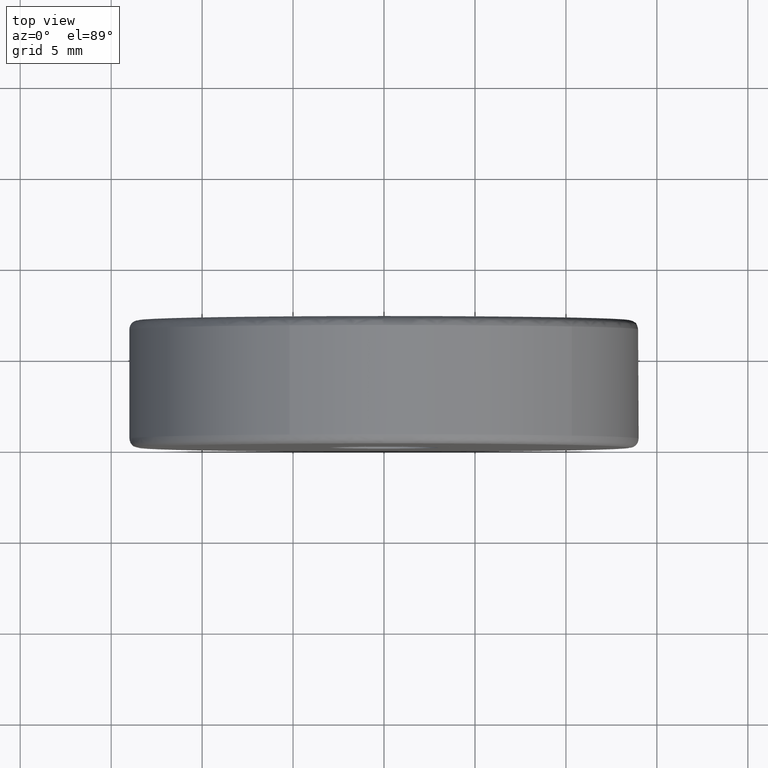
[diagram: clean part render]
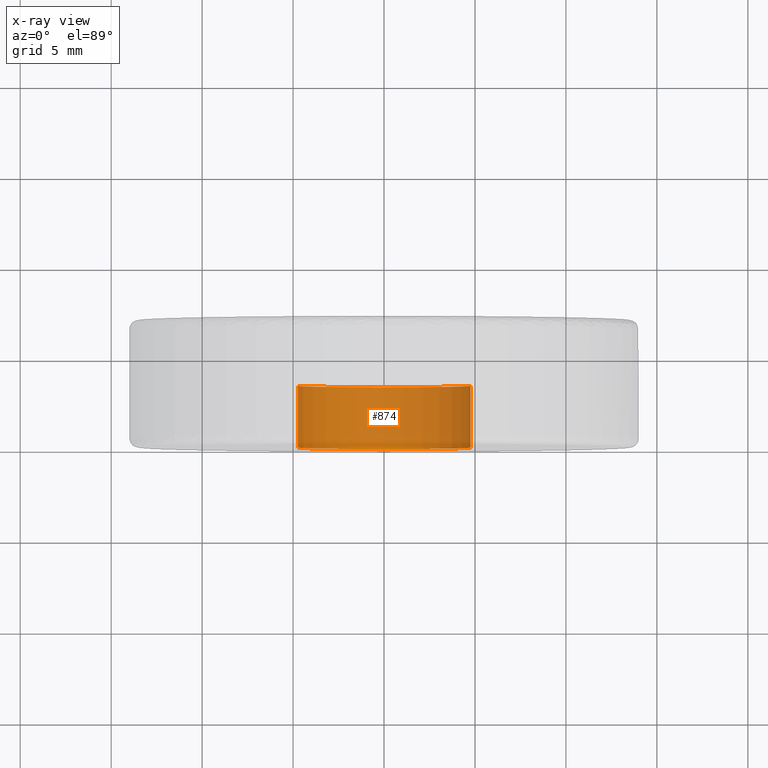
[diagram: x-ray — body ghosted, one internal face saturated and labeled with its STEP entity id]
A machine part, top view, then the same camera in x-ray: the body is ghosted and one INTERNAL B-rep face — a face not visible from any outside direction — is saturated and labeled: STEP entity #874.
In plain terms, the highlighted face is a freeform B-spline surface patch.
Its self-contained STEP definition (entity closure, byte-faithful):
#772=CARTESIAN_POINT('',(-4.726725345491053,3.484999999999961,0.561842956966170));
#773=CARTESIAN_POINT('',(-4.742805049535363,3.484999999999960,0.426566108316774));
#774=CARTESIAN_POINT('',(-4.751121640488086,3.484999999999960,0.290591048185919));
#775=CARTESIAN_POINT('',(-5.041712688674005,3.484999999999960,-4.460530592302168));
#776=CARTESIAN_POINT('',(-0.290591048185919,3.484999999999960,-4.751121640488086));
#777=CARTESIAN_POINT('',(4.460530592302168,3.484999999999960,-5.041712688674005));
#778=CARTESIAN_POINT('',(4.751121640488086,3.484999999999960,-0.290591048185919));
#779=CARTESIAN_POINT('',(-4.726725345491053,-0.087124999999999,0.561842956966170));
#780=CARTESIAN_POINT('',(-4.742805049535363,-0.087124999999999,0.426566108316774));
#781=CARTESIAN_POINT('',(-4.751121640488086,-0.087124999999999,0.290591048185919));
#782=CARTESIAN_POINT('',(-5.041712688674005,-0.087124999999999,-4.460530592302168));
#783=CARTESIAN_POINT('',(-0.290591048185919,-0.087124999999999,-4.751121640488086));
#784=CARTESIAN_POINT('',(4.460530592302168,-0.087124999999999,-5.041712688674005));
#785=CARTESIAN_POINT('',(4.751121640488086,-0.087124999999999,-0.290591048185919));
#793=(BOUNDED_SURFACE()B_SPLINE_SURFACE(2,1,((#772,#779),(#773,#780),(#774,#781),(#775,#782),(#776,#783),(#777,#784),(#778,#785)),.UNSPECIFIED.,.F.,.F.,.U.)B_SPLINE_SURFACE_WITH_KNOTS((3,2,2,3),(2,2),(0.0,0.315465049103350,8.202091276687078,16.088717504270800),(0.0,3.572124999999959),.UNSPECIFIED.)GEOMETRIC_REPRESENTATION_ITEM()RATIONAL_B_SPLINE_SURFACE(((0.977505800795127,0.977505800795127),(0.988284271247462,0.988284271247462),(1.0,1.0),(0.707106781186548,0.707106781186548),(1.0,1.0),(0.707106781186548,0.707106781186548),(1.0,1.0)))REPRESENTATION_ITEM('')SURFACE());
#794=CARTESIAN_POINT('',(-4.726725345487727,3.399999999999960,0.561842956994150));
#795=VERTEX_POINT('',#794);
#796=CARTESIAN_POINT('',(0.0,3.399999999999960,-4.760000000000001));
#797=VERTEX_POINT('',#796);
#798=CARTESIAN_POINT('',(-4.726725345487727,3.399999999999960,0.561842956994150));
#799=CARTESIAN_POINT('',(-4.760000000000001,3.399999999999960,0.281906809571368));
#800=CARTESIAN_POINT('',(-4.760000000000001,3.399999999999960,0.0));
#801=CARTESIAN_POINT('',(-4.760000000000001,3.399999999999959,-4.760000000000001));
#802=CARTESIAN_POINT('',(0.0,3.399999999999960,-4.760000000000001));
#810=(BOUNDED_CURVE()B_SPLINE_CURVE(2,(#798,#799,#800,#801,#802),.UNSPECIFIED.,.F.,.U.)B_SPLINE_CURVE_WITH_KNOTS((3,2,3),(0.229562473513643,0.250000000000000,0.500000000000000),.UNSPECIFIED.)CURVE()GEOMETRIC_REPRESENTATION_ITEM()RATIONAL_B_SPLINE_CURVE((0.956026754183964,0.976055948331303,1.0,0.707106781186548,1.0))REPRESENTATION_ITEM(''));
#811=EDGE_CURVE('',#795,#797,#810,.T.);
#812=ORIENTED_EDGE('',*,*,#811,.F.);
#813=CARTESIAN_POINT('',(-4.726725345487727,2.839428E-017,0.561842956994150));
#814=VERTEX_POINT('',#813);
#815=CARTESIAN_POINT('',(-4.726725345487727,3.399999999999960,0.561842956994150));
#816=CARTESIAN_POINT('',(-4.726725345487727,2.839428E-017,0.561842956994150));
#817=QUASI_UNIFORM_CURVE('',1,(#815,#816),.UNSPECIFIED.,.F.,.U.);
#818=EDGE_CURVE('',#795,#814,#817,.T.);
#819=ORIENTED_EDGE('',*,*,#818,.T.);
#820=CARTESIAN_POINT('',(0.0,0.0,-4.760000000000001));
#821=VERTEX_POINT('',#820);
#822=CARTESIAN_POINT('',(-4.726725345487727,2.839428E-017,0.561842956994150));
#823=CARTESIAN_POINT('',(-4.760000000000001,0.0,0.281906809571368));
#824=CARTESIAN_POINT('',(-4.760000000000001,0.0,0.0));
#825=CARTESIAN_POINT('',(-4.760000000000001,0.0,-4.760000000000001));
#826=CARTESIAN_POINT('',(0.0,0.0,-4.760000000000001));
#834=(BOUNDED_CURVE()B_SPLINE_CURVE(2,(#822,#823,#824,#825,#826),.UNSPECIFIED.,.F.,.U.)B_SPLINE_CURVE_WITH_KNOTS((3,2,3),(0.229562473513643,0.250000000000000,0.500000000000000),.UNSPECIFIED.)CURVE()GEOMETRIC_REPRESENTATION_ITEM()RATIONAL_B_SPLINE_CURVE((0.956026754183964,0.976055948331303,1.0,0.707106781186548,1.0))REPRESENTATION_ITEM(''));
#835=EDGE_CURVE('',#814,#821,#834,.T.);
#836=ORIENTED_EDGE('',*,*,#835,.T.);
#837=CARTESIAN_POINT('',(4.751121669237395,2.775558E-017,-0.290590578138126));
#838=VERTEX_POINT('',#837);
#839=CARTESIAN_POINT('',(0.0,0.0,-4.760000000000001));
#840=CARTESIAN_POINT('',(4.477761766133056,0.0,-4.760000000000000));
#841=CARTESIAN_POINT('',(4.751121669237395,2.775558E-017,-0.290590578138126));
#849=(BOUNDED_CURVE()B_SPLINE_CURVE(2,(#839,#840,#841),.UNSPECIFIED.,.F.,.U.)B_SPLINE_CURVE_WITH_KNOTS((3,3),(0.500000000000000,0.739332996383481),.UNSPECIFIED.)CURVE()GEOMETRIC_REPRESENTATION_ITEM()RATIONAL_B_SPLINE_CURVE((1.0,0.719603953283895,0.976072114844974))REPRESENTATION_ITEM(''));
#850=EDGE_CURVE('',#821,#838,#849,.T.);
#851=ORIENTED_EDGE('',*,*,#850,.T.);
#852=CARTESIAN_POINT('',(4.751121669587326,3.399999999999959,-0.290590572416782));
#853=VERTEX_POINT('',#852);
#854=CARTESIAN_POINT('',(4.751121669587326,3.399999999999959,-0.290590572416782));
#855=CARTESIAN_POINT('',(4.751121669237395,2.775558E-017,-0.290590578138126));
#856=QUASI_UNIFORM_CURVE('',1,(#854,#855),.UNSPECIFIED.,.F.,.U.);
#857=EDGE_CURVE('',#853,#838,#856,.T.);
#858=ORIENTED_EDGE('',*,*,#857,.F.);
#859=CARTESIAN_POINT('',(0.0,3.399999999999960,-4.760000000000001));
#860=CARTESIAN_POINT('',(4.477761776937543,3.399999999999960,-4.760000000000002));
#861=CARTESIAN_POINT('',(4.751121669587326,3.399999999999959,-0.290590572416782));
#869=(BOUNDED_CURVE()B_SPLINE_CURVE(2,(#859,#860,#861),.UNSPECIFIED.,.F.,.U.)B_SPLINE_CURVE_WITH_KNOTS((3,3),(0.500000000000000,0.739332996799047),.UNSPECIFIED.)CURVE()GEOMETRIC_REPRESENTATION_ITEM()RATIONAL_B_SPLINE_CURVE((1.0,0.719603952797030,0.976072115735610))REPRESENTATION_ITEM(''));
#870=EDGE_CURVE('',#797,#853,#869,.T.);
#871=ORIENTED_EDGE('',*,*,#870,.F.);
#872=EDGE_LOOP('',(#812,#819,#836,#851,#858,#871));
#873=FACE_OUTER_BOUND('',#872,.T.);
#874=ADVANCED_FACE('',(#873),#793,.F.);